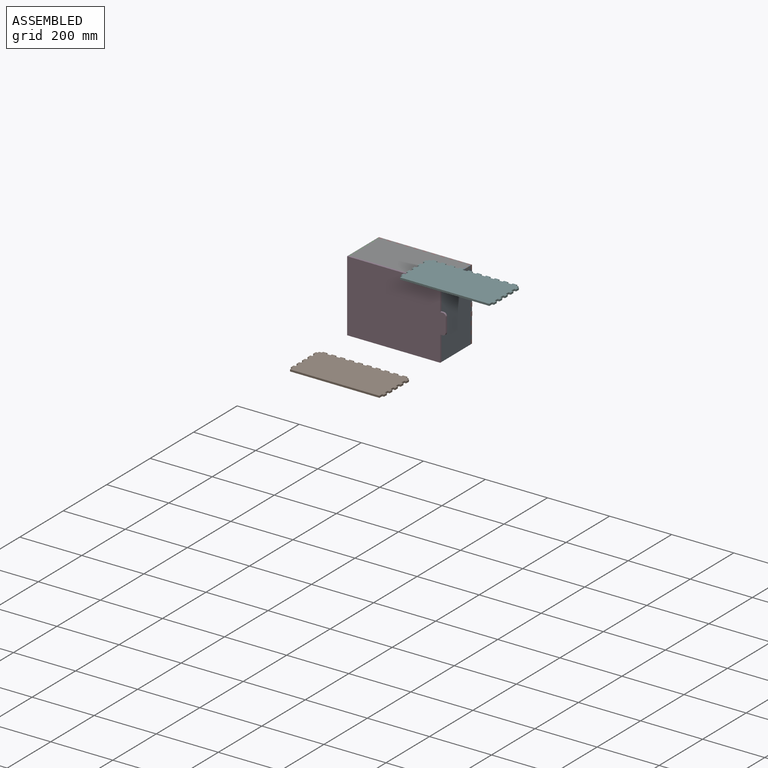
[diagram: assembled view]
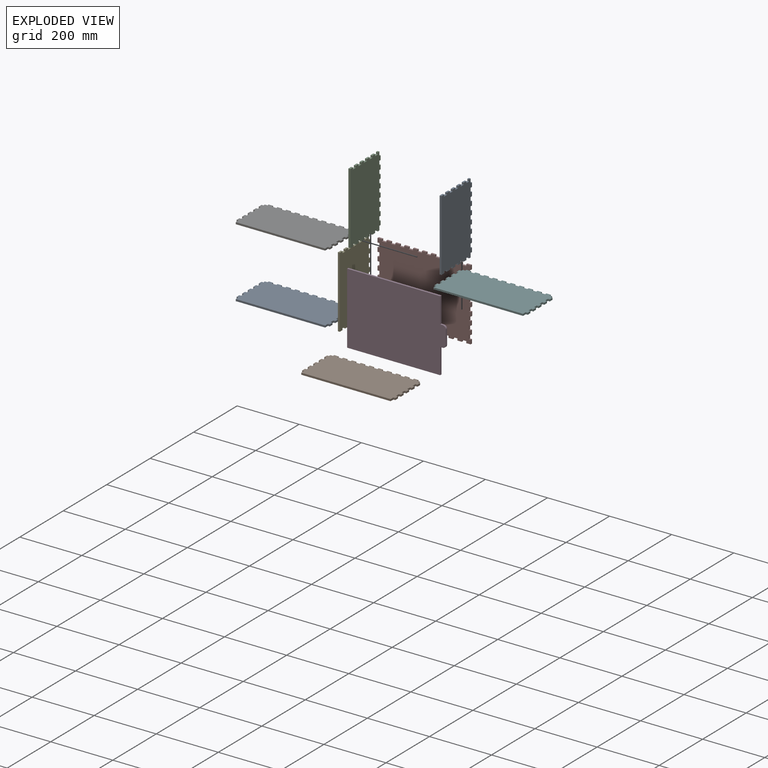
[diagram: exploded view]
GUIDED TOUR — MATED ASSEMBLY (Onshape document c0f93b202b602cbd2d23033f, AutoMate assembly c0f93b202b602cbd2d23033f_798e643a001d0c904de547af_803018418724ee15e28c0f07_default)

This assembly has 9 components, labeled P0..P8 below (a component is one placed occurrence of a part; the same part can appear more than once), held together by 5 mates. A mate is a constraint between two components; its type names the relative motion it leaves free:
  FASTENED — locks the two components together rigidly (no relative motion),
  REVOLUTE — leaves rotation about the listed axis free (a hinge).
Axis/direction vectors are unit vectors and 'through' points are millimeter coordinates, both in the assembly's world frame.

MATES
  1. FASTENED "Fastened 1": P7 <-> P8, direction (1.000, 0.000, 0.000) through (-205.83, -22.58, -101.08) mm
  2. FASTENED "front": P7 <-> P0, direction (0.000, 0.000, 1.000) through (66.74, -22.58, -86.78) mm
  3. FASTENED "ende": P7 <-> P2, direction (0.000, 0.000, 1.000) through (-221.26, -22.58, 102.63) mm
  4. FASTENED "Fastened 2": P7 <-> P6, direction (1.000, 0.000, 0.000) through (51.31, -22.58, 116.92) mm
  5. REVOLUTE "Revolute 1": P3 <-> P2, axis (0.000, 0.000, -1.000) through (-227.26, -162.58, 7.92) mm

ASSEMBLY ORDER
  1. P4 — the base component [order verified]
  2. P2 [order verified]
  3. P0 [order verified]
  4. P7 [order verified]
  5. P8 [order verified]
  6. P6 [order verified]
  7. P3 [order verified]
  8. P5 [order verified]
  9. P1 [order verified]
Order-tag legend:
  [order verified] — this step's position reverses a verified removal order: the component was checked to insert without passing through the ones already placed.

Of the 9 components, 9 carry the full construction recipe — the FeatureScript program that regenerates the part's solid from scratch; the rest are supplied as boundary geometry only.
Each toured component is shown spotlighted twice — in the assembled view, then in the exploded view, where a leader line traces a displaced component back to its assembled socket (saturated green if recipe-attached, orange if geometry-only; every other component desaturated gray) — followed by its recipe or geometry summary and the mates that hold it.
NOTE — this tour is split across 2 documents so each fits a 32k-token context. This is document 1: the component sections continue in the remaining 1 document, each repeating the header above.
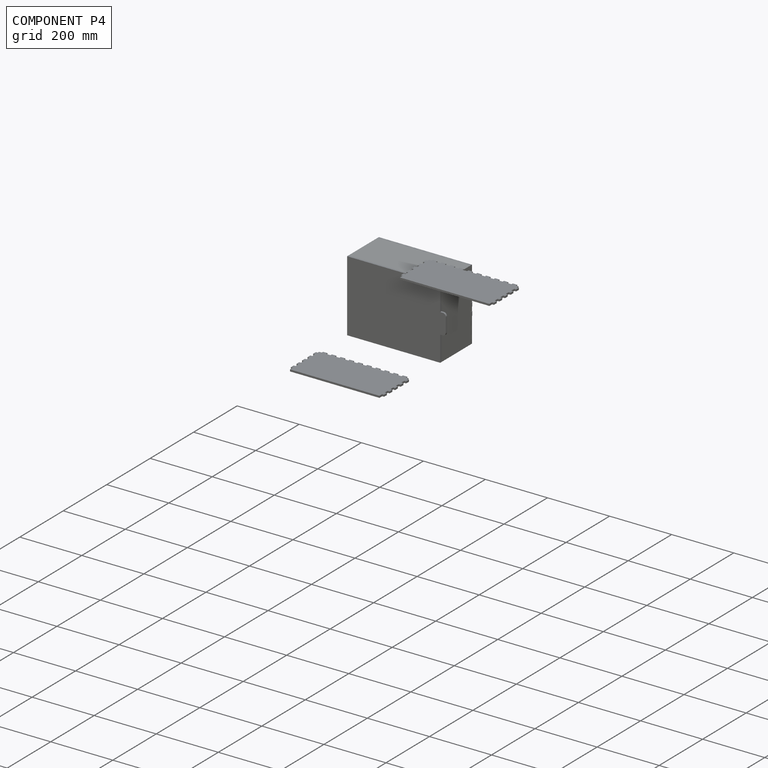
[diagram: component P4 — assembled]
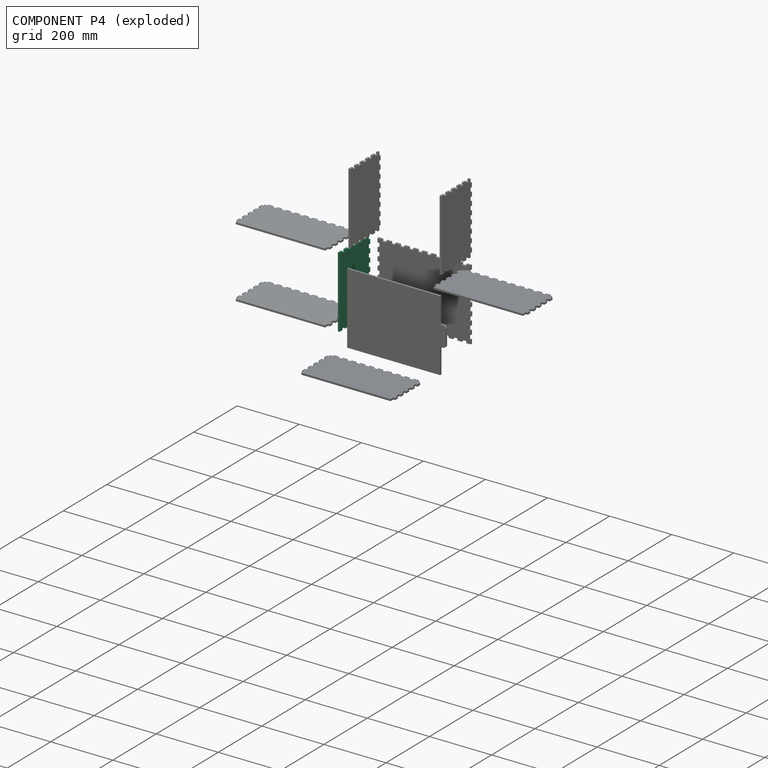
[diagram: component P4 — exploded]
COMPONENT P4 — same part as P0 (CADFS 00955355); its construction recipe is shown at P0.
Held by: no mates (free).
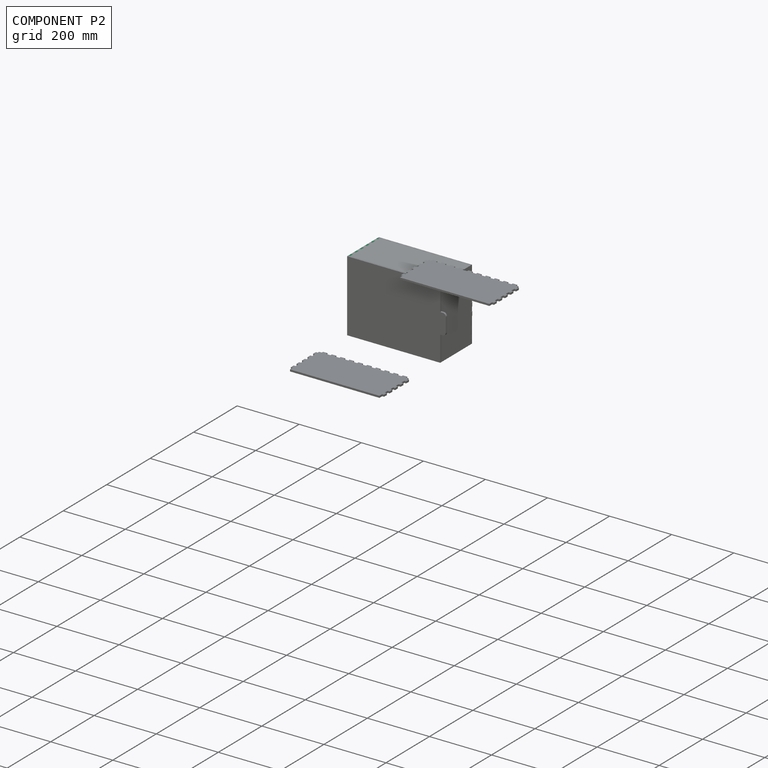
[diagram: component P2 — assembled]
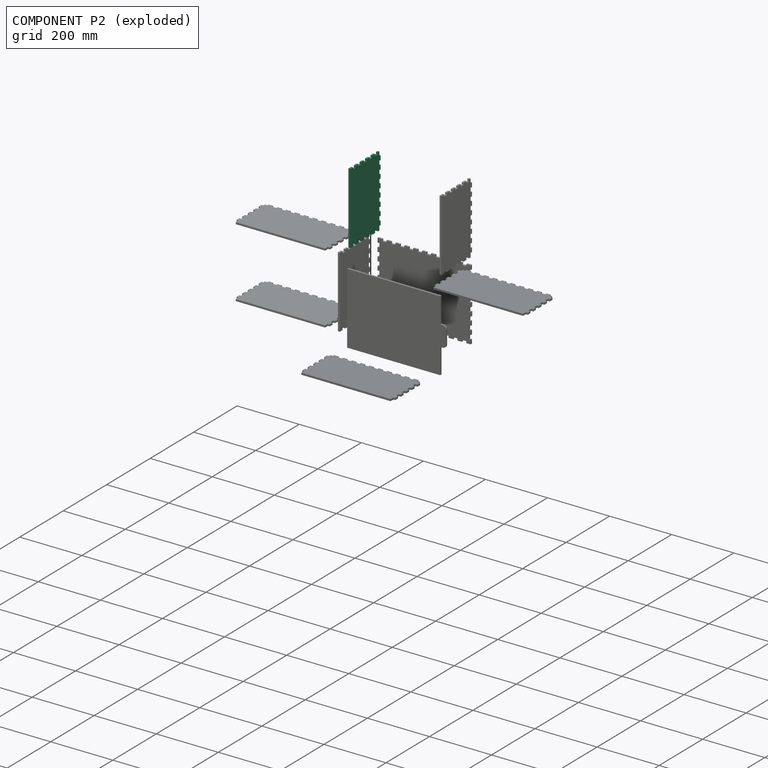
[diagram: component P2 — exploded]
COMPONENT P2 — recipe-attached (CADFS 00955355, mesh-verified: the recipe's output STEP matches this component's geometry to below the mesh-comparison resolution (tessellation chordal tolerance ~0.404 mm)).
Held by: FASTENED mate "ende" to P7; REVOLUTE mate "Revolute 1" to P3.
Construction recipe (FeatureScript — the CAD program that rebuilds this solid; sketch coordinates are in the units given by the * unit suffixes, e.g. mm):

FeatureScript 1511;
import(path : "onshape/std/geometry.fs", version : "1511.0");
import(path : "onshape/std/common.fs", version : "1511.0");
const mm = millimeter;
const VERTEX = EntityType.VERTEX;
const EDGE = EntityType.EDGE;
const FACE = EntityType.FACE;
const BODY = EntityType.BODY;
function v(x, y){return vector(x, y);}
function OD(order){return orderDisambiguation(order);}
function OSD(set){return originalSetDisambiguation(set);}
function TD(topology){return topologyDisambiguation(topology);}
function TDD(query){return trueDependencyDisambiguation(query);}
function sQuery(a, b, c) {return sketchEntityQuery(a, b, c);}

annotation { "Feature Type Name" : "Feature", "Feature Type Description" : "" }
export const myFeature = defineFeature(function(context is Context, id is Id, definition is map)
    precondition{}
    {
        {
            var Q0;
            Q0=qCreatedBy(makeId("Front.planeOp"),FACE);
            var sketch = newSketch(context, id + "F0", { "sketchPlane" : qUnion([Q0])});
            skLineSegment(sketch, "E0.top", {"start": v(109, 70) * mm, "end": v(-109, 70) * mm});
            skPoint(sketch, "E0.middle", {"position": v(0, 0) * mm});
            skLineSegment(sketch, "E1", {"start": v(-101.47, -70) * mm, "end": v(-101.47, -64) * mm});
            skLineSegment(sketch, "E2", {"start": v(-87.94, -64) * mm, "end": v(-87.94, -70) * mm});
            skLineSegment(sketch, "E3.1.0.0", {"start": v(-60.88, -64) * mm, "end": v(-60.88, -70) * mm});
            skLineSegment(sketch, "E3.1.0.4", {"start": v(-74.41, -70) * mm, "end": v(-74.41, -64) * mm});
            skLineSegment(sketch, "E3.2.0.0", {"start": v(-33.82, -64) * mm, "end": v(-33.82, -70) * mm});
            skLineSegment(sketch, "E3.2.0.4", {"start": v(-47.35, -70) * mm, "end": v(-47.35, -64) * mm});
            skLineSegment(sketch, "E3.3.0.0", {"start": v(-6.76, -64) * mm, "end": v(-6.76, -70) * mm});
            skLineSegment(sketch, "E3.3.0.4", {"start": v(-20.3, -70) * mm, "end": v(-20.3, -64) * mm});
            skLineSegment(sketch, "E3.4.0.0", {"start": v(20.3, -64) * mm, "end": v(20.3, -70) * mm});
            skLineSegment(sketch, "E3.4.0.4", {"start": v(6.76, -70) * mm, "end": v(6.76, -64) * mm});
            skLineSegment(sketch, "E3.5.0.0", {"start": v(47.35, -64) * mm, "end": v(47.35, -70) * mm});
            skLineSegment(sketch, "E3.5.0.4", {"start": v(33.82, -70) * mm, "end": v(33.82, -64) * mm});
            skLineSegment(sketch, "E3.6.0.0", {"start": v(74.41, -64) * mm, "end": v(74.41, -70) * mm});
            skLineSegment(sketch, "E3.6.0.4", {"start": v(60.88, -70) * mm, "end": v(60.88, -64) * mm});
            skLineSegment(sketch, "E3.7.0.0", {"start": v(101.47, -64) * mm, "end": v(101.47, -70) * mm});
            skLineSegment(sketch, "E3.7.0.4", {"start": v(87.94, -70) * mm, "end": v(87.94, -64) * mm});
            skLineSegment(sketch, "E3.direction1", {"start": v(-101.47, -70) * mm, "end": v(-87.94, -70) * mm, "construction": true});
            skLineSegment(sketch, "E4", {"start": v(-115, -64) * mm, "end": v(-115, -57.27) * mm});
            skLineSegment(sketch, "E5", {"start": v(-115, -57.27) * mm, "end": v(-109, -57.27) * mm});
            skLineSegment(sketch, "E6", {"start": v(-109, -57.27) * mm, "end": v(-109, -44.55) * mm});
            skLineSegment(sketch, "E7", {"start": v(-109, -44.55) * mm, "end": v(-115, -44.55) * mm});
            skLineSegment(sketch, "E8", {"start": v(-115, -44.55) * mm, "end": v(-115, -31.82) * mm});
            skLineSegment(sketch, "E9.1.0.0", {"start": v(-109, -31.82) * mm, "end": v(-109, -19.1) * mm});
            skLineSegment(sketch, "E9.1.0.1", {"start": v(-109, -19.1) * mm, "end": v(-115, -19.1) * mm});
            skLineSegment(sketch, "E9.1.0.2", {"start": v(-115, -31.82) * mm, "end": v(-109, -31.82) * mm});
            skLineSegment(sketch, "E9.1.0.3", {"start": v(-115, -19.1) * mm, "end": v(-115, -6.36) * mm});
            skLineSegment(sketch, "E9.2.0.0", {"start": v(-109, -6.36) * mm, "end": v(-109, 6.36) * mm});
            skLineSegment(sketch, "E9.2.0.1", {"start": v(-109, 6.36) * mm, "end": v(-115, 6.36) * mm});
            skLineSegment(sketch, "E9.2.0.2", {"start": v(-115, -6.36) * mm, "end": v(-109, -6.36) * mm});
            skLineSegment(sketch, "E9.2.0.3", {"start": v(-115, 6.36) * mm, "end": v(-115, 19.1) * mm});
            skLineSegment(sketch, "E9.2.0.4", {"start": v(-115, -19.1) * mm, "end": v(-115, -6.36) * mm});
            skLineSegment(sketch, "E9.direction1", {"start": v(-115, -64) * mm, "end": v(-115, -44.55) * mm, "construction": true});
            skLineSegment(sketch, "E10.0.3.0", {"start": v(-109, 19.1) * mm, "end": v(-109, 31.82) * mm});
            skLineSegment(sketch, "E10.3.3.0", {"start": v(-109, 31.82) * mm, "end": v(-115, 31.82) * mm});
            skLineSegment(sketch, "E10.6.3.0", {"start": v(-115, 19.1) * mm, "end": v(-109, 19.1) * mm});
            skLineSegment(sketch, "E10.9.3.0", {"start": v(-115, 31.82) * mm, "end": v(-115, 44.55) * mm});
            skLineSegment(sketch, "E10.0.4.0", {"start": v(-109, 44.55) * mm, "end": v(-109, 57.27) * mm});
            skLineSegment(sketch, "E10.6.4.0", {"start": v(-115, 44.55) * mm, "end": v(-109, 44.55) * mm});
            skLineSegment(sketch, "E10.12.4.0", {"start": v(-115, 31.82) * mm, "end": v(-115, 44.55) * mm});
            skLineSegment(sketch, "E11.MirrorCS", {"start": v(115, 44.55) * mm, "end": v(109, 44.55) * mm});
            skLineSegment(sketch, "E12.MirrorCS", {"start": v(109, -44.55) * mm, "end": v(115, -44.55) * mm});
            skLineSegment(sketch, "E13.MirrorCS", {"start": v(115, -31.82) * mm, "end": v(109, -31.82) * mm});
            skLineSegment(sketch, "E14.MirrorCS", {"start": v(109, -19.1) * mm, "end": v(115, -19.1) * mm});
            skLineSegment(sketch, "E15.MirrorCS", {"start": v(109, 6.36) * mm, "end": v(115, 6.36) * mm});
            skLineSegment(sketch, "E16.MirrorCS", {"start": v(115, -6.36) * mm, "end": v(109, -6.36) * mm});
            skLineSegment(sketch, "E17.MirrorCS", {"start": v(115, -44.55) * mm, "end": v(115, -31.82) * mm});
            skLineSegment(sketch, "E18.MirrorCS", {"start": v(115, -57.27) * mm, "end": v(109, -57.27) * mm});
            skLineSegment(sketch, "E19.MirrorCS", {"start": v(109, 31.82) * mm, "end": v(115, 31.82) * mm});
            skLineSegment(sketch, "E20.MirrorCS", {"start": v(115, 19.1) * mm, "end": v(109, 19.1) * mm});
            skLineSegment(sketch, "E21.MirrorCS", {"start": v(115, 6.36) * mm, "end": v(115, 19.1) * mm});
            skLineSegment(sketch, "E22.MirrorCS", {"start": v(115, 31.82) * mm, "end": v(115, 44.55) * mm});
            skLineSegment(sketch, "E23.MirrorCS", {"start": v(115, -64) * mm, "end": v(115, -57.27) * mm});
            skLineSegment(sketch, "E24.MirrorCS", {"start": v(115, -19.1) * mm, "end": v(115, -6.36) * mm});
            skLineSegment(sketch, "E25.MirrorCS", {"start": v(115, -64) * mm, "end": v(115, -44.55) * mm, "construction": true});
            skLineSegment(sketch, "E26.MirrorCS", {"start": v(109, 19.1) * mm, "end": v(109, 31.82) * mm});
            skLineSegment(sketch, "E27.MirrorCS", {"start": v(109, -6.36) * mm, "end": v(109, 6.36) * mm});
            skLineSegment(sketch, "E28.MirrorCS", {"start": v(109, 44.55) * mm, "end": v(109, 57.27) * mm});
            skLineSegment(sketch, "E29.MirrorCS", {"start": v(109, -57.27) * mm, "end": v(109, -44.55) * mm});
            skLineSegment(sketch, "E30.MirrorCS", {"start": v(109, -31.82) * mm, "end": v(109, -19.1) * mm});
            skLineSegment(sketch, "E31", {"start": v(-115, -64) * mm, "end": v(-101.47, -64) * mm});
            skPoint(sketch, "E31.startSnap0", {"position": v(-115, -63.64) * mm});
            skPoint(sketch, "E31.endSnap0", {"position": v(94.7, -64) * mm});
            skLineSegment(sketch, "E32", {"start": v(101.47, -70) * mm, "end": v(87.94, -70) * mm});
            skPoint(sketch, "E33.orphan", {"position": v(-115, -70) * mm});
            skLineSegment(sketch, "E34.trimOffspring", {"start": v(-87.94, -64) * mm, "end": v(-74.41, -64) * mm});
            skLineSegment(sketch, "E35.trimOffspring", {"start": v(-87.94, -70) * mm, "end": v(-101.47, -70) * mm});
            skLineSegment(sketch, "E36.trimOffspring", {"start": v(-60.88, -64) * mm, "end": v(-47.35, -64) * mm});
            skLineSegment(sketch, "E37.trimOffspring", {"start": v(-60.88, -70) * mm, "end": v(-74.41, -70) * mm});
            skLineSegment(sketch, "E38.trimOffspring", {"start": v(-33.82, -64) * mm, "end": v(-20.3, -64) * mm});
            skLineSegment(sketch, "E39.trimOffspring", {"start": v(-33.82, -70) * mm, "end": v(-47.35, -70) * mm});
            skLineSegment(sketch, "E40.trimOffspring", {"start": v(-6.76, -64) * mm, "end": v(6.76, -64) * mm});
            skLineSegment(sketch, "E41.trimOffspring", {"start": v(-6.76, -70) * mm, "end": v(-20.3, -70) * mm});
            skLineSegment(sketch, "E42.trimOffspring", {"start": v(20.3, -64) * mm, "end": v(33.82, -64) * mm});
            skLineSegment(sketch, "E43.trimOffspring", {"start": v(20.3, -70) * mm, "end": v(6.76, -70) * mm});
            skLineSegment(sketch, "E44.trimOffspring", {"start": v(47.35, -64) * mm, "end": v(60.88, -64) * mm});
            skLineSegment(sketch, "E45.trimOffspring", {"start": v(47.35, -70) * mm, "end": v(33.82, -70) * mm});
            skLineSegment(sketch, "E46.trimOffspring", {"start": v(74.41, -64) * mm, "end": v(87.94, -64) * mm});
            skLineSegment(sketch, "E47.trimOffspring", {"start": v(74.41, -70) * mm, "end": v(60.88, -70) * mm});
            skLineSegment(sketch, "E48.trimOffspring", {"start": v(101.47, -64) * mm, "end": v(115, -64) * mm});
            skPoint(sketch, "E49.orphan", {"position": v(115, 70) * mm});
            skLineSegment(sketch, "E50", {"start": v(-109, 57.27) * mm, "end": v(-115, 57.27) * mm});
            skLineSegment(sketch, "E51", {"start": v(-115, 57.27) * mm, "end": v(-115, 70) * mm});
            skLineSegment(sketch, "E52", {"start": v(-115, 70) * mm, "end": v(-109, 70) * mm});
            skLineSegment(sketch, "E53", {"start": v(109, 57.27) * mm, "end": v(115, 57.27) * mm});
            skLineSegment(sketch, "E54", {"start": v(115, 57.27) * mm, "end": v(115, 70) * mm});
            skLineSegment(sketch, "E55", {"start": v(109, 70) * mm, "end": v(115, 70) * mm});
            skSolve(sketch);
        }
        {
            var Q0;
            Q0=makeQuery(id+"F0.imprint","IMPRINT",FACE,{"disambiguationData":[TD([[makeQuery(id+"F0.imprint","IMPRINT",EDGE,{"derivedFrom":sQuery(id+"F0.wireOp",EDGE,"E0.top")}),1.0]])]});
            extrude(context, id + "F1", {"entities" : qUnion([Q0]), "depth" : 6 * mm, "offsetDistance" : 25 * mm});
        }
    });
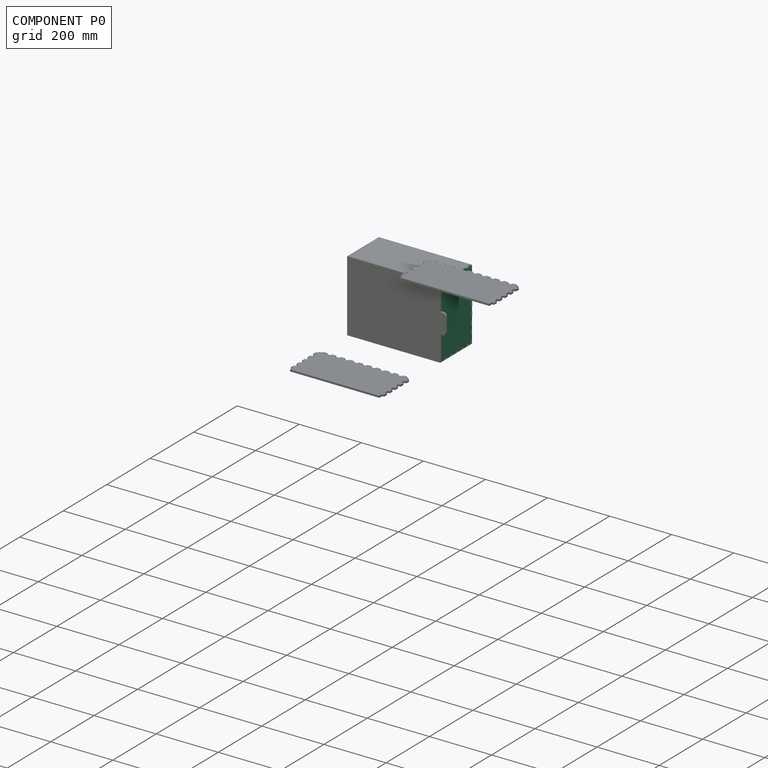
[diagram: component P0 — assembled]
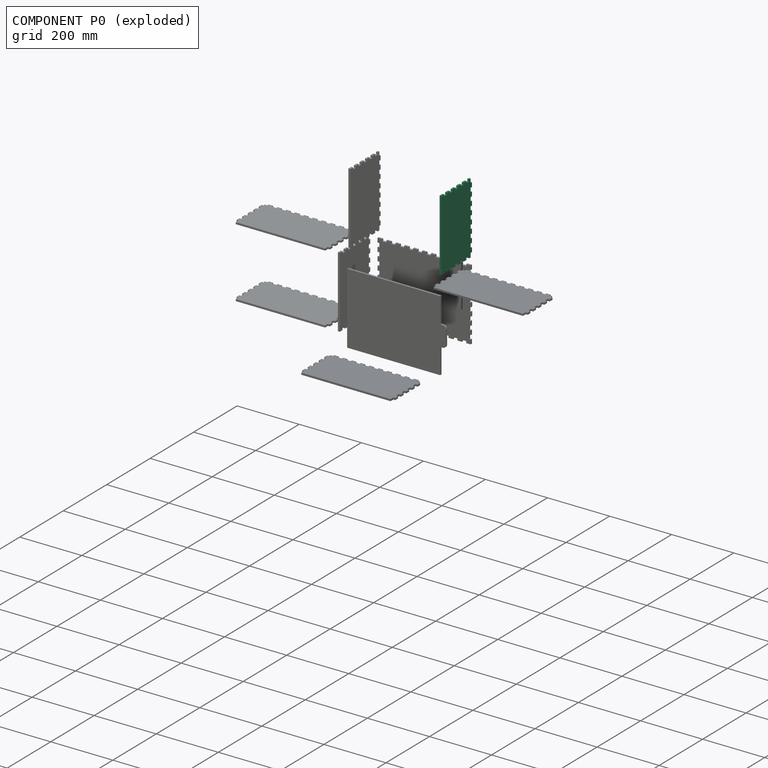
[diagram: component P0 — exploded]
COMPONENT P0 — recipe-attached (CADFS 00955355, mesh-verified: the recipe's output STEP matches this component's geometry to below the mesh-comparison resolution (tessellation chordal tolerance ~0.404 mm)).
Held by: FASTENED mate "front" to P7.
Construction recipe (FeatureScript — the CAD program that rebuilds this solid; sketch coordinates are in the units given by the * unit suffixes, e.g. mm):

FeatureScript 1511;
import(path : "onshape/std/geometry.fs", version : "1511.0");
import(path : "onshape/std/common.fs", version : "1511.0");
const mm = millimeter;
const VERTEX = EntityType.VERTEX;
const EDGE = EntityType.EDGE;
const FACE = EntityType.FACE;
const BODY = EntityType.BODY;
function v(x, y){return vector(x, y);}
function OD(order){return orderDisambiguation(order);}
function OSD(set){return originalSetDisambiguation(set);}
function TD(topology){return topologyDisambiguation(topology);}
function TDD(query){return trueDependencyDisambiguation(query);}
function sQuery(a, b, c) {return sketchEntityQuery(a, b, c);}

annotation { "Feature Type Name" : "Feature", "Feature Type Description" : "" }
export const myFeature = defineFeature(function(context is Context, id is Id, definition is map)
    precondition{}
    {
        {
            var Q0;
            Q0=qCreatedBy(makeId("Front.planeOp"),FACE);
            var sketch = newSketch(context, id + "F0", { "sketchPlane" : qUnion([Q0])});
            skLineSegment(sketch, "E0.top", {"start": v(109, 70) * mm, "end": v(-109, 70) * mm});
            skPoint(sketch, "E0.middle", {"position": v(0, 0) * mm});
            skLineSegment(sketch, "E1", {"start": v(-101.47, -70) * mm, "end": v(-101.47, -64) * mm});
            skLineSegment(sketch, "E2", {"start": v(-87.94, -64) * mm, "end": v(-87.94, -70) * mm});
            skLineSegment(sketch, "E3.1.0.0", {"start": v(-60.88, -64) * mm, "end": v(-60.88, -70) * mm});
            skLineSegment(sketch, "E3.1.0.4", {"start": v(-74.41, -70) * mm, "end": v(-74.41, -64) * mm});
            skLineSegment(sketch, "E3.2.0.0", {"start": v(-33.82, -64) * mm, "end": v(-33.82, -70) * mm});
            skLineSegment(sketch, "E3.2.0.4", {"start": v(-47.35, -70) * mm, "end": v(-47.35, -64) * mm});
            skLineSegment(sketch, "E3.3.0.0", {"start": v(-6.76, -64) * mm, "end": v(-6.76, -70) * mm});
            skLineSegment(sketch, "E3.3.0.4", {"start": v(-20.3, -70) * mm, "end": v(-20.3, -64) * mm});
            skLineSegment(sketch, "E3.4.0.0", {"start": v(20.3, -64) * mm, "end": v(20.3, -70) * mm});
            skLineSegment(sketch, "E3.4.0.4", {"start": v(6.76, -70) * mm, "end": v(6.76, -64) * mm});
            skLineSegment(sketch, "E3.5.0.0", {"start": v(47.35, -64) * mm, "end": v(47.35, -70) * mm});
            skLineSegment(sketch, "E3.5.0.4", {"start": v(33.82, -70) * mm, "end": v(33.82, -64) * mm});
            skLineSegment(sketch, "E3.6.0.0", {"start": v(74.41, -64) * mm, "end": v(74.41, -70) * mm});
            skLineSegment(sketch, "E3.6.0.4", {"start": v(60.88, -70) * mm, "end": v(60.88, -64) * mm});
            skLineSegment(sketch, "E3.7.0.0", {"start": v(101.47, -64) * mm, "end": v(101.47, -70) * mm});
            skLineSegment(sketch, "E3.7.0.4", {"start": v(87.94, -70) * mm, "end": v(87.94, -64) * mm});
            skLineSegment(sketch, "E3.direction1", {"start": v(-101.47, -70) * mm, "end": v(-87.94, -70) * mm, "construction": true});
            skLineSegment(sketch, "E4", {"start": v(-115, -64) * mm, "end": v(-115, -57.27) * mm});
            skLineSegment(sketch, "E5", {"start": v(-115, -57.27) * mm, "end": v(-109, -57.27) * mm});
            skLineSegment(sketch, "E6", {"start": v(-109, -57.27) * mm, "end": v(-109, -44.55) * mm});
            skLineSegment(sketch, "E7", {"start": v(-109, -44.55) * mm, "end": v(-115, -44.55) * mm});
            skLineSegment(sketch, "E8", {"start": v(-115, -44.55) * mm, "end": v(-115, -31.82) * mm});
            skLineSegment(sketch, "E9.1.0.0", {"start": v(-109, -31.82) * mm, "end": v(-109, -19.1) * mm});
            skLineSegment(sketch, "E9.1.0.1", {"start": v(-109, -19.1) * mm, "end": v(-115, -19.1) * mm});
            skLineSegment(sketch, "E9.1.0.2", {"start": v(-115, -31.82) * mm, "end": v(-109, -31.82) * mm});
            skLineSegment(sketch, "E9.1.0.3", {"start": v(-115, -19.1) * mm, "end": v(-115, -6.36) * mm});
            skLineSegment(sketch, "E9.2.0.0", {"start": v(-109, -6.36) * mm, "end": v(-109, 6.36) * mm});
            skLineSegment(sketch, "E9.2.0.1", {"start": v(-109, 6.36) * mm, "end": v(-115, 6.36) * mm});
            skLineSegment(sketch, "E9.2.0.2", {"start": v(-115, -6.36) * mm, "end": v(-109, -6.36) * mm});
            skLineSegment(sketch, "E9.2.0.3", {"start": v(-115, 6.36) * mm, "end": v(-115, 19.1) * mm});
            skLineSegment(sketch, "E9.2.0.4", {"start": v(-115, -19.1) * mm, "end": v(-115, -6.36) * mm});
            skLineSegment(sketch, "E9.direction1", {"start": v(-115, -64) * mm, "end": v(-115, -44.55) * mm, "construction": true});
            skLineSegment(sketch, "E10.0.3.0", {"start": v(-109, 19.1) * mm, "end": v(-109, 31.82) * mm});
            skLineSegment(sketch, "E10.3.3.0", {"start": v(-109, 31.82) * mm, "end": v(-115, 31.82) * mm});
            skLineSegment(sketch, "E10.6.3.0", {"start": v(-115, 19.1) * mm, "end": v(-109, 19.1) * mm});
            skLineSegment(sketch, "E10.9.3.0", {"start": v(-115, 31.82) * mm, "end": v(-115, 44.55) * mm});
            skLineSegment(sketch, "E10.0.4.0", {"start": v(-109, 44.55) * mm, "end": v(-109, 57.27) * mm});
            skLineSegment(sketch, "E10.6.4.0", {"start": v(-115, 44.55) * mm, "end": v(-109, 44.55) * mm});
            skLineSegment(sketch, "E10.12.4.0", {"start": v(-115, 31.82) * mm, "end": v(-115, 44.55) * mm});
            skLineSegment(sketch, "E11.MirrorCS", {"start": v(115, 44.55) * mm, "end": v(109, 44.55) * mm});
            skLineSegment(sketch, "E12.MirrorCS", {"start": v(109, -44.55) * mm, "end": v(115, -44.55) * mm});
            skLineSegment(sketch, "E13.MirrorCS", {"start": v(115, -31.82) * mm, "end": v(109, -31.82) * mm});
            skLineSegment(sketch, "E14.MirrorCS", {"start": v(109, -19.1) * mm, "end": v(115, -19.1) * mm});
            skLineSegment(sketch, "E15.MirrorCS", {"start": v(109, 6.36) * mm, "end": v(115, 6.36) * mm});
            skLineSegment(sketch, "E16.MirrorCS", {"start": v(115, -6.36) * mm, "end": v(109, -6.36) * mm});
            skLineSegment(sketch, "E17.MirrorCS", {"start": v(115, -44.55) * mm, "end": v(115, -31.82) * mm});
            skLineSegment(sketch, "E18.MirrorCS", {"start": v(115, -57.27) * mm, "end": v(109, -57.27) * mm});
            skLineSegment(sketch, "E19.MirrorCS", {"start": v(109, 31.82) * mm, "end": v(115, 31.82) * mm});
            skLineSegment(sketch, "E20.MirrorCS", {"start": v(115, 19.1) * mm, "end": v(109, 19.1) * mm});
            skLineSegment(sketch, "E21.MirrorCS", {"start": v(115, 6.36) * mm, "end": v(115, 19.1) * mm});
            skLineSegment(sketch, "E22.MirrorCS", {"start": v(115, 31.82) * mm, "end": v(115, 44.55) * mm});
            skLineSegment(sketch, "E23.MirrorCS", {"start": v(115, -64) * mm, "end": v(115, -57.27) * mm});
            skLineSegment(sketch, "E24.MirrorCS", {"start": v(115, -19.1) * mm, "end": v(115, -6.36) * mm});
            skLineSegment(sketch, "E25.MirrorCS", {"start": v(115, -64) * mm, "end": v(115, -44.55) * mm, "construction": true});
            skLineSegment(sketch, "E26.MirrorCS", {"start": v(109, 19.1) * mm, "end": v(109, 31.82) * mm});
            skLineSegment(sketch, "E27.MirrorCS", {"start": v(109, -6.36) * mm, "end": v(109, 6.36) * mm});
            skLineSegment(sketch, "E28.MirrorCS", {"start": v(109, 44.55) * mm, "end": v(109, 57.27) * mm});
            skLineSegment(sketch, "E29.MirrorCS", {"start": v(109, -57.27) * mm, "end": v(109, -44.55) * mm});
            skLineSegment(sketch, "E30.MirrorCS", {"start": v(109, -31.82) * mm, "end": v(109, -19.1) * mm});
            skLineSegment(sketch, "E31", {"start": v(-115, -64) * mm, "end": v(-101.47, -64) * mm});
            skPoint(sketch, "E31.startSnap0", {"position": v(-115, -63.64) * mm});
            skPoint(sketch, "E31.endSnap0", {"position": v(94.7, -64) * mm});
            skLineSegment(sketch, "E32", {"start": v(101.47, -70) * mm, "end": v(87.94, -70) * mm});
            skPoint(sketch, "E33.orphan", {"position": v(-115, -70) * mm});
            skLineSegment(sketch, "E34.trimOffspring", {"start": v(-87.94, -64) * mm, "end": v(-74.41, -64) * mm});
            skLineSegment(sketch, "E35.trimOffspring", {"start": v(-87.94, -70) * mm, "end": v(-101.47, -70) * mm});
            skLineSegment(sketch, "E36.trimOffspring", {"start": v(-60.88, -64) * mm, "end": v(-47.35, -64) * mm});
            skLineSegment(sketch, "E37.trimOffspring", {"start": v(-60.88, -70) * mm, "end": v(-74.41, -70) * mm});
            skLineSegment(sketch, "E38.trimOffspring", {"start": v(-33.82, -64) * mm, "end": v(-20.3, -64) * mm});
            skLineSegment(sketch, "E39.trimOffspring", {"start": v(-33.82, -70) * mm, "end": v(-47.35, -70) * mm});
            skLineSegment(sketch, "E40.trimOffspring", {"start": v(-6.76, -64) * mm, "end": v(6.76, -64) * mm});
            skLineSegment(sketch, "E41.trimOffspring", {"start": v(-6.76, -70) * mm, "end": v(-20.3, -70) * mm});
            skLineSegment(sketch, "E42.trimOffspring", {"start": v(20.3, -64) * mm, "end": v(33.82, -64) * mm});
            skLineSegment(sketch, "E43.trimOffspring", {"start": v(20.3, -70) * mm, "end": v(6.76, -70) * mm});
            skLineSegment(sketch, "E44.trimOffspring", {"start": v(47.35, -64) * mm, "end": v(60.88, -64) * mm});
            skLineSegment(sketch, "E45.trimOffspring", {"start": v(47.35, -70) * mm, "end": v(33.82, -70) * mm});
            skLineSegment(sketch, "E46.trimOffspring", {"start": v(74.41, -64) * mm, "end": v(87.94, -64) * mm});
            skLineSegment(sketch, "E47.trimOffspring", {"start": v(74.41, -70) * mm, "end": v(60.88, -70) * mm});
            skLineSegment(sketch, "E48.trimOffspring", {"start": v(101.47, -64) * mm, "end": v(115, -64) * mm});
            skPoint(sketch, "E49.orphan", {"position": v(115, 70) * mm});
            skLineSegment(sketch, "E50", {"start": v(-109, 57.27) * mm, "end": v(-115, 57.27) * mm});
            skLineSegment(sketch, "E51", {"start": v(-115, 57.27) * mm, "end": v(-115, 70) * mm});
            skLineSegment(sketch, "E52", {"start": v(-115, 70) * mm, "end": v(-109, 70) * mm});
            skLineSegment(sketch, "E53", {"start": v(109, 57.27) * mm, "end": v(115, 57.27) * mm});
            skLineSegment(sketch, "E54", {"start": v(115, 57.27) * mm, "end": v(115, 70) * mm});
            skLineSegment(sketch, "E55", {"start": v(109, 70) * mm, "end": v(115, 70) * mm});
            skSolve(sketch);
        }
        {
            var Q0;
            Q0=makeQuery(id+"F0.imprint","IMPRINT",FACE,{"disambiguationData":[TD([[makeQuery(id+"F0.imprint","IMPRINT",EDGE,{"derivedFrom":sQuery(id+"F0.wireOp",EDGE,"E0.top")}),1.0]])]});
            extrude(context, id + "F1", {"entities" : qUnion([Q0]), "depth" : 6 * mm, "offsetDistance" : 25 * mm});
        }
    });
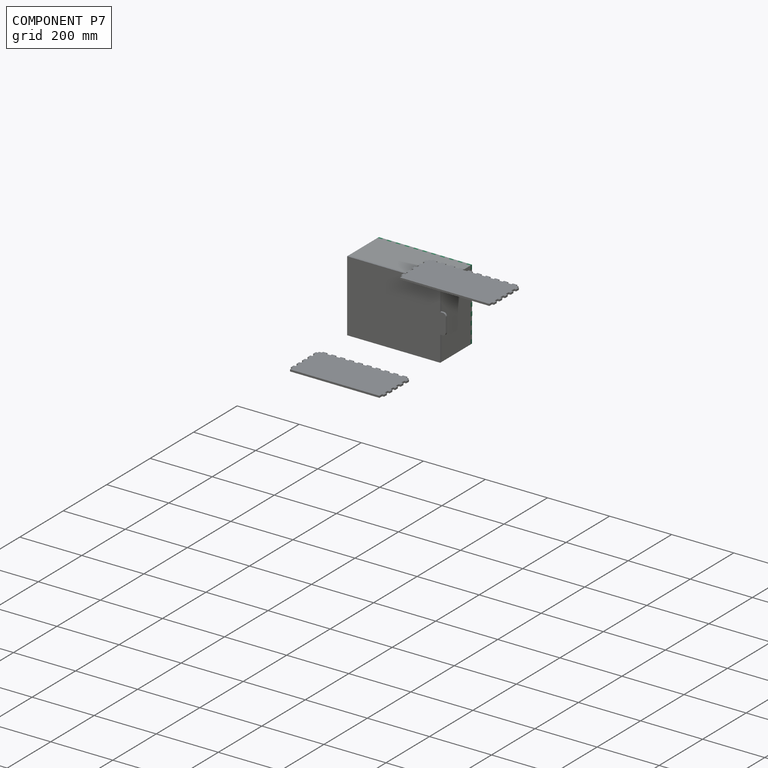
[diagram: component P7 — assembled]
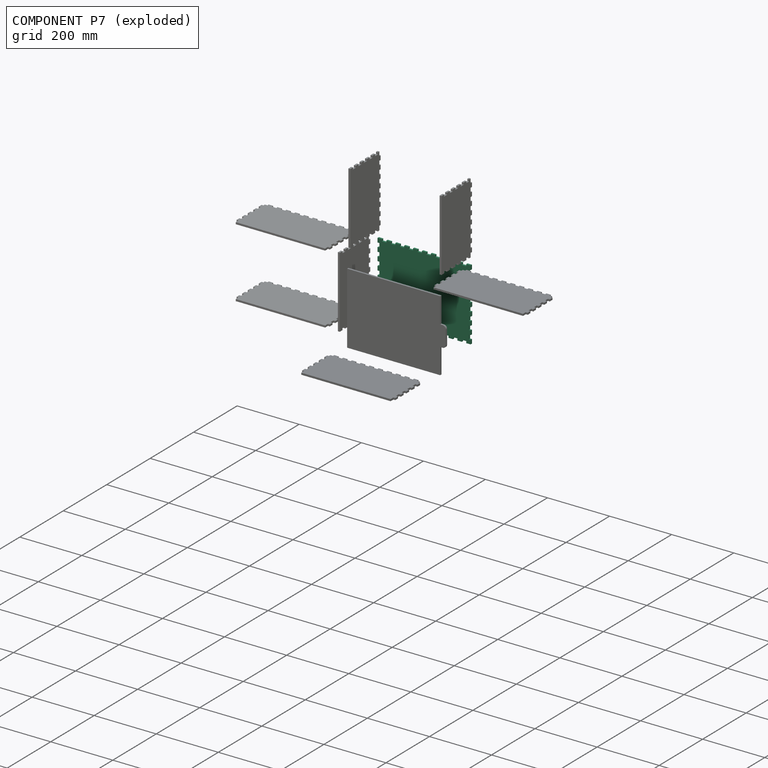
[diagram: component P7 — exploded]
COMPONENT P7 — recipe-attached (CADFS 00955353, mesh-verified: the recipe's output STEP matches this component's geometry to below the mesh-comparison resolution (tessellation chordal tolerance ~0.568 mm)).
Held by: FASTENED mate "Fastened 1" to P8; FASTENED mate "front" to P0; FASTENED mate "ende" to P2; FASTENED mate "Fastened 2" to P6.
Construction recipe (FeatureScript — the CAD program that rebuilds this solid; sketch coordinates are in the units given by the * unit suffixes, e.g. mm):

FeatureScript 1511;
import(path : "onshape/std/geometry.fs", version : "1511.0");
import(path : "onshape/std/common.fs", version : "1511.0");
const mm = millimeter;
const VERTEX = EntityType.VERTEX;
const EDGE = EntityType.EDGE;
const FACE = EntityType.FACE;
const BODY = EntityType.BODY;
function v(x, y){return vector(x, y);}
function OD(order){return orderDisambiguation(order);}
function OSD(set){return originalSetDisambiguation(set);}
function TD(topology){return topologyDisambiguation(topology);}
function TDD(query){return trueDependencyDisambiguation(query);}
function sQuery(a, b, c) {return sketchEntityQuery(a, b, c);}

annotation { "Feature Type Name" : "Feature", "Feature Type Description" : "" }
export const myFeature = defineFeature(function(context is Context, id is Id, definition is map)
    precondition{}
    {
        {
            var Q0;
            Q0=qCreatedBy(makeId("Front.planeOp"),FACE);
            var sketch = newSketch(context, id + "F0", { "sketchPlane" : qUnion([Q0])});
            skLineSegment(sketch, "E0.left", {"start": v(149.57, 115) * mm, "end": v(149.57, 115.47) * mm});
            skLineSegment(sketch, "E1", {"start": v(-150.43, 115) * mm, "end": v(-136.14, 115) * mm});
            skLineSegment(sketch, "E2", {"start": v(-136.14, 115) * mm, "end": v(-136.14, 109) * mm});
            skLineSegment(sketch, "E3", {"start": v(-136.14, 109) * mm, "end": v(-121.86, 109) * mm});
            skLineSegment(sketch, "E4", {"start": v(-121.86, 109) * mm, "end": v(-121.86, 115) * mm});
            skLineSegment(sketch, "E5", {"start": v(-121.86, 115) * mm, "end": v(-107.57, 115) * mm});
            skLineSegment(sketch, "E6.1.0.1", {"start": v(-93.29, 115) * mm, "end": v(-79, 115) * mm});
            skLineSegment(sketch, "E6.1.0.2", {"start": v(-107.57, 109) * mm, "end": v(-93.29, 109) * mm});
            skLineSegment(sketch, "E6.1.0.3", {"start": v(-107.57, 115) * mm, "end": v(-107.57, 109) * mm});
            skLineSegment(sketch, "E6.1.0.4", {"start": v(-93.29, 109) * mm, "end": v(-93.29, 115) * mm});
            skLineSegment(sketch, "E6.2.0.0", {"start": v(-93.29, 115) * mm, "end": v(-79, 115) * mm});
            skLineSegment(sketch, "E6.2.0.1", {"start": v(-64.72, 115) * mm, "end": v(-50.43, 115) * mm});
            skLineSegment(sketch, "E6.2.0.2", {"start": v(-79, 109) * mm, "end": v(-64.72, 109) * mm});
            skLineSegment(sketch, "E6.2.0.3", {"start": v(-79, 115) * mm, "end": v(-79, 109) * mm});
            skLineSegment(sketch, "E6.2.0.4", {"start": v(-64.72, 109) * mm, "end": v(-64.72, 115) * mm});
            skLineSegment(sketch, "E6.3.0.0", {"start": v(-64.72, 115) * mm, "end": v(-50.43, 115) * mm});
            skLineSegment(sketch, "E6.3.0.1", {"start": v(-36.14, 115) * mm, "end": v(-21.86, 115) * mm});
            skLineSegment(sketch, "E6.3.0.2", {"start": v(-50.43, 109) * mm, "end": v(-36.14, 109) * mm});
            skLineSegment(sketch, "E6.3.0.3", {"start": v(-50.43, 115) * mm, "end": v(-50.43, 109) * mm});
            skLineSegment(sketch, "E6.3.0.4", {"start": v(-36.14, 109) * mm, "end": v(-36.14, 115) * mm});
            skLineSegment(sketch, "E6.4.0.0", {"start": v(-36.14, 115) * mm, "end": v(-21.86, 115) * mm});
            skLineSegment(sketch, "E6.4.0.1", {"start": v(-7.57, 115) * mm, "end": v(6.71, 115) * mm});
            skLineSegment(sketch, "E6.4.0.2", {"start": v(-21.86, 109) * mm, "end": v(-7.57, 109) * mm});
            skLineSegment(sketch, "E6.4.0.3", {"start": v(-21.86, 115) * mm, "end": v(-21.86, 109) * mm});
            skLineSegment(sketch, "E6.4.0.4", {"start": v(-7.57, 109) * mm, "end": v(-7.57, 115) * mm});
            skLineSegment(sketch, "E6.5.0.0", {"start": v(-7.57, 115) * mm, "end": v(6.71, 115) * mm});
            skLineSegment(sketch, "E6.5.0.1", {"start": v(21, 115) * mm, "end": v(35.28, 115) * mm});
            skLineSegment(sketch, "E6.5.0.2", {"start": v(6.71, 109) * mm, "end": v(21, 109) * mm});
            skLineSegment(sketch, "E6.5.0.3", {"start": v(6.71, 115) * mm, "end": v(6.71, 109) * mm});
            skLineSegment(sketch, "E6.5.0.4", {"start": v(21, 109) * mm, "end": v(21, 115) * mm});
            skLineSegment(sketch, "E6.6.0.0", {"start": v(21, 115) * mm, "end": v(35.28, 115) * mm});
            skLineSegment(sketch, "E6.6.0.1", {"start": v(49.57, 115) * mm, "end": v(63.86, 115) * mm});
            skLineSegment(sketch, "E6.6.0.2", {"start": v(35.28, 109) * mm, "end": v(49.57, 109) * mm});
            skLineSegment(sketch, "E6.6.0.3", {"start": v(35.28, 115) * mm, "end": v(35.28, 109) * mm});
            skLineSegment(sketch, "E6.6.0.4", {"start": v(49.57, 109) * mm, "end": v(49.57, 115) * mm});
            skLineSegment(sketch, "E6.7.0.0", {"start": v(49.57, 115) * mm, "end": v(63.86, 115) * mm});
            skLineSegment(sketch, "E6.7.0.1", {"start": v(78.14, 115) * mm, "end": v(92.43, 115) * mm});
            skLineSegment(sketch, "E6.7.0.2", {"start": v(63.86, 109) * mm, "end": v(78.14, 109) * mm});
            skLineSegment(sketch, "E6.7.0.3", {"start": v(63.86, 115) * mm, "end": v(63.86, 109) * mm});
            skLineSegment(sketch, "E6.7.0.4", {"start": v(78.14, 109) * mm, "end": v(78.14, 115) * mm});
            skLineSegment(sketch, "E6.8.0.0", {"start": v(78.14, 115) * mm, "end": v(92.43, 115) * mm});
            skLineSegment(sketch, "E6.8.0.1", {"start": v(106.71, 115) * mm, "end": v(121, 115) * mm});
            skLineSegment(sketch, "E6.8.0.2", {"start": v(92.43, 109) * mm, "end": v(106.71, 109) * mm});
            skLineSegment(sketch, "E6.8.0.3", {"start": v(92.43, 115) * mm, "end": v(92.43, 109) * mm});
            skLineSegment(sketch, "E6.8.0.4", {"start": v(106.71, 109) * mm, "end": v(106.71, 115) * mm});
            skLineSegment(sketch, "E6.9.0.0", {"start": v(106.71, 115) * mm, "end": v(121, 115) * mm});
            skLineSegment(sketch, "E6.9.0.1", {"start": v(135.28, 115) * mm, "end": v(149.57, 115) * mm});
            skLineSegment(sketch, "E6.9.0.2", {"start": v(121, 109) * mm, "end": v(135.28, 109) * mm});
            skLineSegment(sketch, "E6.9.0.3", {"start": v(121, 115) * mm, "end": v(121, 109) * mm});
            skLineSegment(sketch, "E6.9.0.4", {"start": v(135.28, 109) * mm, "end": v(135.28, 115) * mm});
            skLineSegment(sketch, "E6.direction1", {"start": v(-150.43, 115) * mm, "end": v(-121.86, 115) * mm, "construction": true});
            skLineSegment(sketch, "E7.MirrorCS", {"start": v(-121.86, -109) * mm, "end": v(-121.86, -115) * mm});
            skLineSegment(sketch, "E8.MirrorCS", {"start": v(-93.29, -109) * mm, "end": v(-93.29, -115) * mm});
            skLineSegment(sketch, "E9.MirrorCS", {"start": v(-107.57, -115) * mm, "end": v(-107.57, -109) * mm});
            skLineSegment(sketch, "E10.MirrorCS", {"start": v(92.43, -115) * mm, "end": v(92.43, -109) * mm});
            skLineSegment(sketch, "E11.MirrorCS", {"start": v(-64.72, -109) * mm, "end": v(-64.72, -115) * mm});
            skLineSegment(sketch, "E12.MirrorCS", {"start": v(6.71, -115) * mm, "end": v(6.71, -109) * mm});
            skLineSegment(sketch, "E13.MirrorCS", {"start": v(121, -115) * mm, "end": v(121, -109) * mm});
            skLineSegment(sketch, "E14.MirrorCS", {"start": v(-79, -115) * mm, "end": v(-79, -109) * mm});
            skLineSegment(sketch, "E15.MirrorCS", {"start": v(-7.57, -109) * mm, "end": v(-7.57, -115) * mm});
            skLineSegment(sketch, "E16.MirrorCS", {"start": v(21, -109) * mm, "end": v(21, -115) * mm});
            skLineSegment(sketch, "E17.MirrorCS", {"start": v(-50.43, -115) * mm, "end": v(-50.43, -109) * mm});
            skLineSegment(sketch, "E18.MirrorCS", {"start": v(-36.14, -109) * mm, "end": v(-36.14, -115) * mm});
            skLineSegment(sketch, "E19.MirrorCS", {"start": v(78.14, -109) * mm, "end": v(78.14, -115) * mm});
            skLineSegment(sketch, "E20.MirrorCS", {"start": v(-21.86, -115) * mm, "end": v(-21.86, -109) * mm});
            skLineSegment(sketch, "E21.MirrorCS", {"start": v(35.28, -115) * mm, "end": v(35.28, -109) * mm});
            skLineSegment(sketch, "E22.MirrorCS", {"start": v(106.71, -109) * mm, "end": v(106.71, -115) * mm});
            skLineSegment(sketch, "E23.MirrorCS", {"start": v(49.57, -109) * mm, "end": v(49.57, -115) * mm});
            skLineSegment(sketch, "E24.MirrorCS", {"start": v(63.86, -115) * mm, "end": v(63.86, -109) * mm});
            skLineSegment(sketch, "E25.MirrorCS", {"start": v(-136.14, -115) * mm, "end": v(-136.14, -109) * mm});
            skLineSegment(sketch, "E26.MirrorCS", {"start": v(135.28, -109) * mm, "end": v(135.28, -115) * mm});
            skLineSegment(sketch, "E27.MirrorCS", {"start": v(49.57, -115) * mm, "end": v(63.86, -115) * mm});
            skLineSegment(sketch, "E28.MirrorCS", {"start": v(-93.29, -115) * mm, "end": v(-79, -115) * mm});
            skLineSegment(sketch, "E29.MirrorCS", {"start": v(-36.14, -115) * mm, "end": v(-21.86, -115) * mm});
            skLineSegment(sketch, "E30.MirrorCS", {"start": v(21, -115) * mm, "end": v(35.28, -115) * mm});
            skLineSegment(sketch, "E31.MirrorCS", {"start": v(78.14, -115) * mm, "end": v(92.43, -115) * mm});
            skLineSegment(sketch, "E32.MirrorCS", {"start": v(106.71, -115) * mm, "end": v(121, -115) * mm});
            skLineSegment(sketch, "E33.MirrorCS", {"start": v(-150.43, -115) * mm, "end": v(-136.14, -115) * mm});
            skLineSegment(sketch, "E34.MirrorCS", {"start": v(-7.57, -115) * mm, "end": v(6.71, -115) * mm});
            skLineSegment(sketch, "E35.MirrorCS", {"start": v(-121.86, -115) * mm, "end": v(-107.57, -115) * mm});
            skLineSegment(sketch, "E36.MirrorCS", {"start": v(-64.72, -115) * mm, "end": v(-50.43, -115) * mm});
            skLineSegment(sketch, "E37.MirrorCS", {"start": v(135.28, -115) * mm, "end": v(149.57, -115) * mm});
            skLineSegment(sketch, "E38.MirrorCS", {"start": v(63.86, -109) * mm, "end": v(78.14, -109) * mm});
            skLineSegment(sketch, "E39.MirrorCS", {"start": v(-21.86, -109) * mm, "end": v(-7.57, -109) * mm});
            skLineSegment(sketch, "E40.MirrorCS", {"start": v(-150.43, -115) * mm, "end": v(-121.86, -115) * mm, "construction": true});
            skLineSegment(sketch, "E41.MirrorCS", {"start": v(35.28, -109) * mm, "end": v(49.57, -109) * mm});
            skLineSegment(sketch, "E42.MirrorCS", {"start": v(6.71, -109) * mm, "end": v(21, -109) * mm});
            skLineSegment(sketch, "E43.MirrorCS", {"start": v(-107.57, -109) * mm, "end": v(-93.29, -109) * mm});
            skLineSegment(sketch, "E44.MirrorCS", {"start": v(92.43, -109) * mm, "end": v(106.71, -109) * mm});
            skLineSegment(sketch, "E45.MirrorCS", {"start": v(121, -109) * mm, "end": v(135.28, -109) * mm});
            skLineSegment(sketch, "E46.MirrorCS", {"start": v(-136.14, -109) * mm, "end": v(-121.86, -109) * mm});
            skLineSegment(sketch, "E47.MirrorCS", {"start": v(-79, -109) * mm, "end": v(-64.72, -109) * mm});
            skLineSegment(sketch, "E48.MirrorCS", {"start": v(-50.43, -109) * mm, "end": v(-36.14, -109) * mm});
            skLineSegment(sketch, "E49", {"start": v(-150.43, -115) * mm, "end": v(-150.43, -101.47) * mm});
            skLineSegment(sketch, "E50", {"start": v(-150.43, -101.47) * mm, "end": v(-144.43, -101.47) * mm});
            skLineSegment(sketch, "E51", {"start": v(-144.43, -101.47) * mm, "end": v(-144.43, -87.94) * mm});
            skLineSegment(sketch, "E52", {"start": v(-144.43, -87.94) * mm, "end": v(-150.43, -87.94) * mm});
            skLineSegment(sketch, "E53", {"start": v(-150.43, -87.94) * mm, "end": v(-150.43, -74.41) * mm});
            skLineSegment(sketch, "E54.1.0.0", {"start": v(-144.43, -60.88) * mm, "end": v(-150.43, -60.88) * mm});
            skLineSegment(sketch, "E54.1.0.2", {"start": v(-144.43, -74.41) * mm, "end": v(-144.43, -60.88) * mm});
            skLineSegment(sketch, "E54.1.0.3", {"start": v(-150.43, -60.88) * mm, "end": v(-150.43, -47.35) * mm});
            skLineSegment(sketch, "E54.1.0.4", {"start": v(-150.43, -74.41) * mm, "end": v(-144.43, -74.41) * mm});
            skLineSegment(sketch, "E54.2.0.0", {"start": v(-144.43, -33.82) * mm, "end": v(-150.43, -33.82) * mm});
            skLineSegment(sketch, "E54.2.0.1", {"start": v(-150.43, -60.88) * mm, "end": v(-150.43, -47.35) * mm});
            skLineSegment(sketch, "E54.2.0.2", {"start": v(-144.43, -47.35) * mm, "end": v(-144.43, -33.82) * mm});
            skLineSegment(sketch, "E54.2.0.3", {"start": v(-150.43, -33.82) * mm, "end": v(-150.43, -20.3) * mm});
            skLineSegment(sketch, "E54.2.0.4", {"start": v(-150.43, -47.35) * mm, "end": v(-144.43, -47.35) * mm});
            skLineSegment(sketch, "E54.direction1", {"start": v(-150.43, -115) * mm, "end": v(-150.43, -87.94) * mm, "construction": true});
            skLineSegment(sketch, "E55.0.3.0", {"start": v(-144.43, -6.76) * mm, "end": v(-150.43, -6.76) * mm});
            skLineSegment(sketch, "E55.6.3.0", {"start": v(-144.43, -20.3) * mm, "end": v(-144.43, -6.76) * mm});
            skLineSegment(sketch, "E55.9.3.0", {"start": v(-150.43, -6.76) * mm, "end": v(-150.43, 6.76) * mm});
            skLineSegment(sketch, "E55.12.3.0", {"start": v(-150.43, -20.3) * mm, "end": v(-144.43, -20.3) * mm});
            skLineSegment(sketch, "E55.0.4.0", {"start": v(-144.43, 20.3) * mm, "end": v(-150.43, 20.3) * mm});
            skLineSegment(sketch, "E55.3.4.0", {"start": v(-150.43, -6.76) * mm, "end": v(-150.43, 6.76) * mm});
            skLineSegment(sketch, "E55.6.4.0", {"start": v(-144.43, 6.76) * mm, "end": v(-144.43, 20.3) * mm});
            skLineSegment(sketch, "E55.9.4.0", {"start": v(-150.43, 20.3) * mm, "end": v(-150.43, 33.82) * mm});
            skLineSegment(sketch, "E55.12.4.0", {"start": v(-150.43, 6.76) * mm, "end": v(-144.43, 6.76) * mm});
            skLineSegment(sketch, "E56.0.5.0", {"start": v(-144.43, 47.35) * mm, "end": v(-150.43, 47.35) * mm});
            skLineSegment(sketch, "E56.6.5.0", {"start": v(-144.43, 33.82) * mm, "end": v(-144.43, 47.35) * mm});
            skLineSegment(sketch, "E56.9.5.0", {"start": v(-150.43, 47.35) * mm, "end": v(-150.43, 60.88) * mm});
            skLineSegment(sketch, "E56.12.5.0", {"start": v(-150.43, 33.82) * mm, "end": v(-144.43, 33.82) * mm});
            skLineSegment(sketch, "E56.0.6.0", {"start": v(-144.43, 74.41) * mm, "end": v(-150.43, 74.41) * mm});
            skLineSegment(sketch, "E56.3.6.0", {"start": v(-150.43, 47.35) * mm, "end": v(-150.43, 60.88) * mm});
            skLineSegment(sketch, "E56.6.6.0", {"start": v(-144.43, 60.88) * mm, "end": v(-144.43, 74.41) * mm});
            skLineSegment(sketch, "E56.9.6.0", {"start": v(-150.43, 74.41) * mm, "end": v(-150.43, 87.94) * mm});
            skLineSegment(sketch, "E56.12.6.0", {"start": v(-150.43, 60.88) * mm, "end": v(-144.43, 60.88) * mm});
            skLineSegment(sketch, "E57.0.7.0", {"start": v(-144.43, 101.47) * mm, "end": v(-150.43, 101.47) * mm});
            skLineSegment(sketch, "E57.6.7.0", {"start": v(-144.43, 87.94) * mm, "end": v(-144.43, 101.47) * mm});
            skLineSegment(sketch, "E57.9.7.0", {"start": v(-150.43, 101.47) * mm, "end": v(-150.43, 115) * mm});
            skLineSegment(sketch, "E57.12.7.0", {"start": v(-150.43, 87.94) * mm, "end": v(-144.43, 87.94) * mm});
            skLineSegment(sketch, "E58.MirrorCS", {"start": v(150.43, -33.82) * mm, "end": v(150.43, -20.3) * mm});
            skLineSegment(sketch, "E59.MirrorCS", {"start": v(150.43, 6.76) * mm, "end": v(144.43, 6.76) * mm});
            skLineSegment(sketch, "E60.MirrorCS", {"start": v(150.43, 33.82) * mm, "end": v(144.43, 33.82) * mm});
            skLineSegment(sketch, "E61.MirrorCS", {"start": v(150.43, 60.88) * mm, "end": v(144.43, 60.88) * mm});
            skLineSegment(sketch, "E62.MirrorCS", {"start": v(144.43, 20.3) * mm, "end": v(150.43, 20.3) * mm});
            skLineSegment(sketch, "E63.MirrorCS", {"start": v(149.57, -60.88) * mm, "end": v(149.57, -47.35) * mm});
            skLineSegment(sketch, "E64.MirrorCS", {"start": v(144.43, -6.76) * mm, "end": v(150.43, -6.76) * mm});
            skLineSegment(sketch, "E65.MirrorCS", {"start": v(144.43, 60.88) * mm, "end": v(144.43, 74.41) * mm});
            skLineSegment(sketch, "E66.MirrorCS", {"start": v(144.43, 6.76) * mm, "end": v(144.43, 20.3) * mm});
            skLineSegment(sketch, "E67.MirrorCS", {"start": v(150.43, -20.3) * mm, "end": v(144.43, -20.3) * mm});
            skLineSegment(sketch, "E68.MirrorCS", {"start": v(144.43, 74.41) * mm, "end": v(149.57, 74.41) * mm});
            skLineSegment(sketch, "E69.MirrorCS", {"start": v(149.57, -47.35) * mm, "end": v(144.43, -47.35) * mm});
            skLineSegment(sketch, "E70.MirrorCS", {"start": v(144.43, -33.82) * mm, "end": v(150.43, -33.82) * mm});
            skLineSegment(sketch, "E71.MirrorCS", {"start": v(143.57, -101.47) * mm, "end": v(143.57, -87.94) * mm});
            skLineSegment(sketch, "E72.MirrorCS", {"start": v(143.57, -87.94) * mm, "end": v(149.57, -87.94) * mm});
            skLineSegment(sketch, "E73.MirrorCS", {"start": v(143.57, -60.88) * mm, "end": v(149.57, -60.88) * mm});
            skLineSegment(sketch, "E74.MirrorCS", {"start": v(149.57, -74.41) * mm, "end": v(143.57, -74.41) * mm});
            skLineSegment(sketch, "E75.MirrorCS", {"start": v(149.57, 101.47) * mm, "end": v(149.57, 115) * mm});
            skLineSegment(sketch, "E76.MirrorCS", {"start": v(143.57, 101.47) * mm, "end": v(149.57, 101.47) * mm});
            skLineSegment(sketch, "E77.MirrorCS", {"start": v(144.43, 33.82) * mm, "end": v(144.43, 47.35) * mm});
            skLineSegment(sketch, "E78.MirrorCS", {"start": v(144.43, 47.35) * mm, "end": v(150.43, 47.35) * mm});
            skLineSegment(sketch, "E79.MirrorCS", {"start": v(149.57, -101.47) * mm, "end": v(143.57, -101.47) * mm});
            skLineSegment(sketch, "E80.MirrorCS", {"start": v(149.57, 87.94) * mm, "end": v(143.57, 87.94) * mm});
            skLineSegment(sketch, "E81.MirrorCS", {"start": v(150.43, 47.35) * mm, "end": v(150.43, 60.88) * mm});
            skLineSegment(sketch, "E82.MirrorCS", {"start": v(150.43, -6.76) * mm, "end": v(150.43, 6.76) * mm});
            skLineSegment(sketch, "E83.MirrorCS", {"start": v(150.43, 20.3) * mm, "end": v(150.43, 33.82) * mm});
            skLineSegment(sketch, "E84.MirrorCS", {"start": v(149.57, -87.94) * mm, "end": v(149.57, -74.41) * mm});
            skLineSegment(sketch, "E85.MirrorCS", {"start": v(149.57, -115) * mm, "end": v(149.57, -101.47) * mm});
            skLineSegment(sketch, "E86.MirrorCS", {"start": v(149.57, -115) * mm, "end": v(149.57, -87.94) * mm, "construction": true});
            skLineSegment(sketch, "E87.MirrorCS", {"start": v(143.57, -74.41) * mm, "end": v(143.57, -60.88) * mm});
            skLineSegment(sketch, "E88.MirrorCS", {"start": v(144.43, -47.35) * mm, "end": v(144.43, -33.82) * mm});
            skLineSegment(sketch, "E89.MirrorCS", {"start": v(144.43, -20.3) * mm, "end": v(144.43, -6.76) * mm});
            skLineSegment(sketch, "E90.MirrorCS", {"start": v(149.57, 74.41) * mm, "end": v(149.57, 87.94) * mm});
            skLineSegment(sketch, "E91.MirrorCS", {"start": v(143.57, 87.94) * mm, "end": v(143.57, 101.47) * mm});
            skSolve(sketch);
        }
        {
            var Q0;
            Q0=makeQuery(id+"F0.imprint","IMPRINT",FACE,{"disambiguationData":[TD([[makeQuery(id+"F0.imprint","IMPRINT",EDGE,{"derivedFrom":sQuery(id+"F0.wireOp",EDGE,"E1")}),-1.0]])]});
            extrude(context, id + "F1", {"entities" : qUnion([Q0]), "depth" : 6 * mm, "offsetDistance" : 25 * mm});
        }
    });
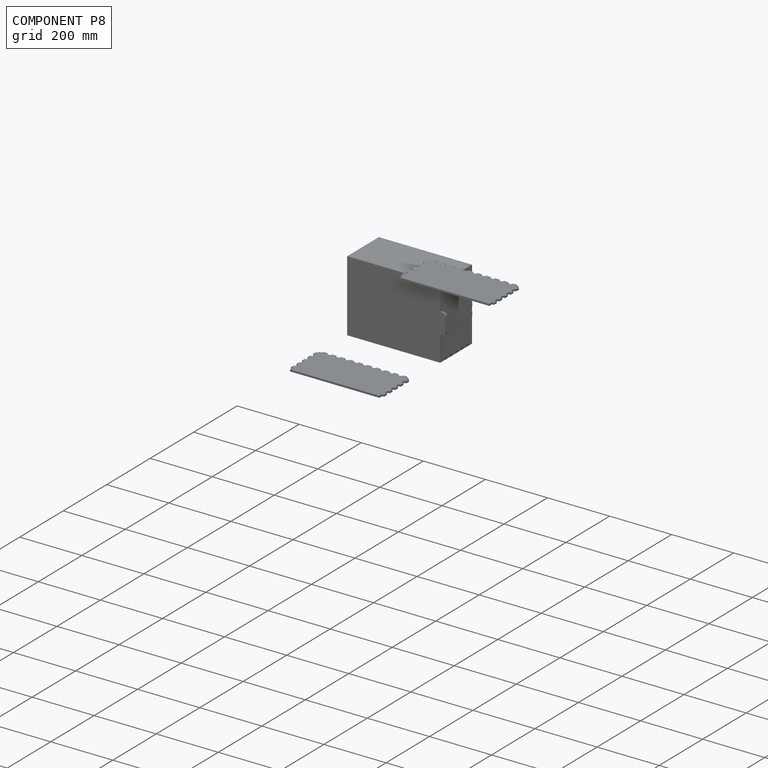
[diagram: component P8 — assembled]
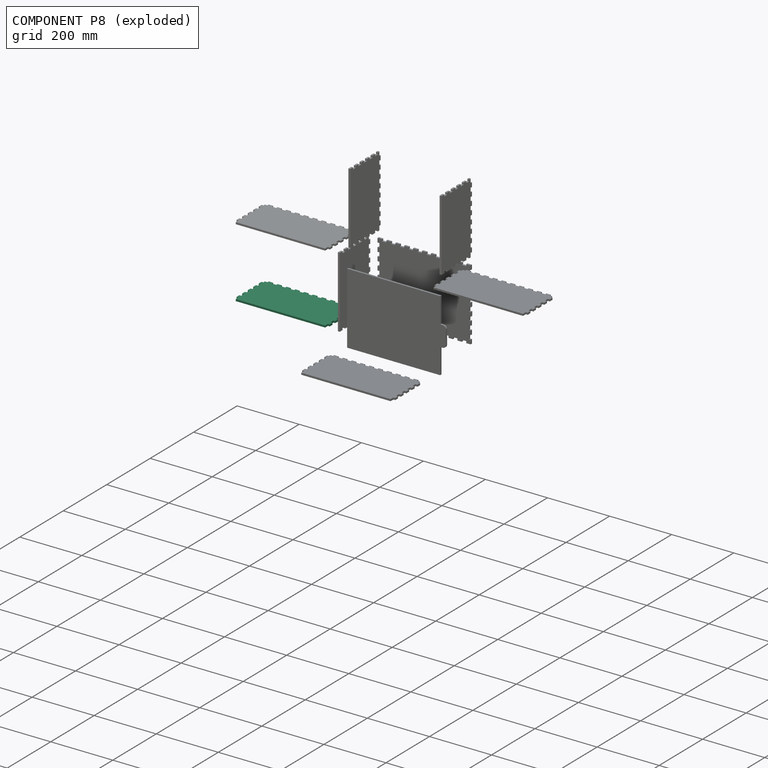
[diagram: component P8 — exploded]
COMPONENT P8 — same part as P1 (CADFS 00955357); its construction recipe is shown at P1.
Held by: FASTENED mate "Fastened 1" to P7.
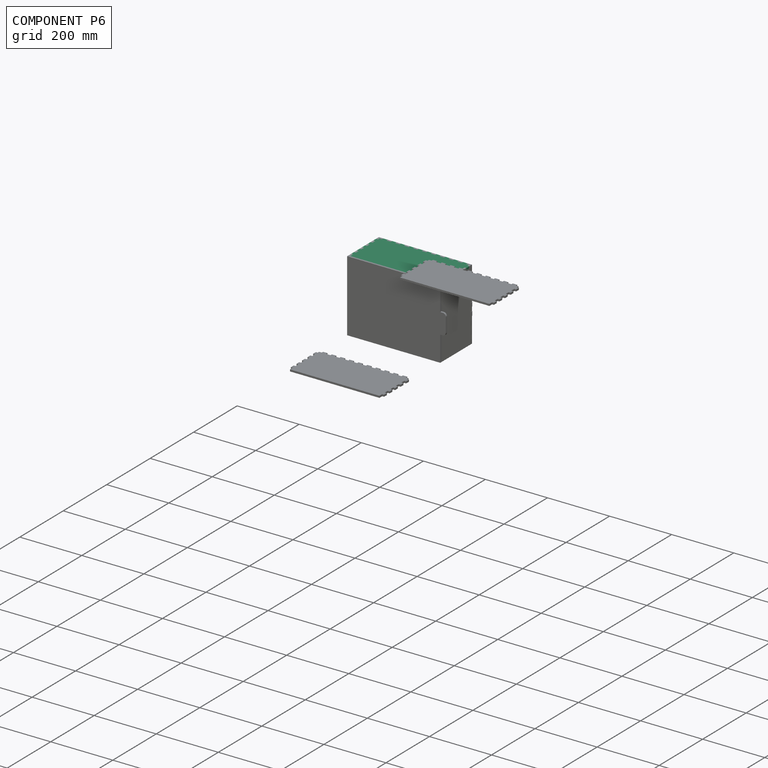
[diagram: component P6 — assembled]
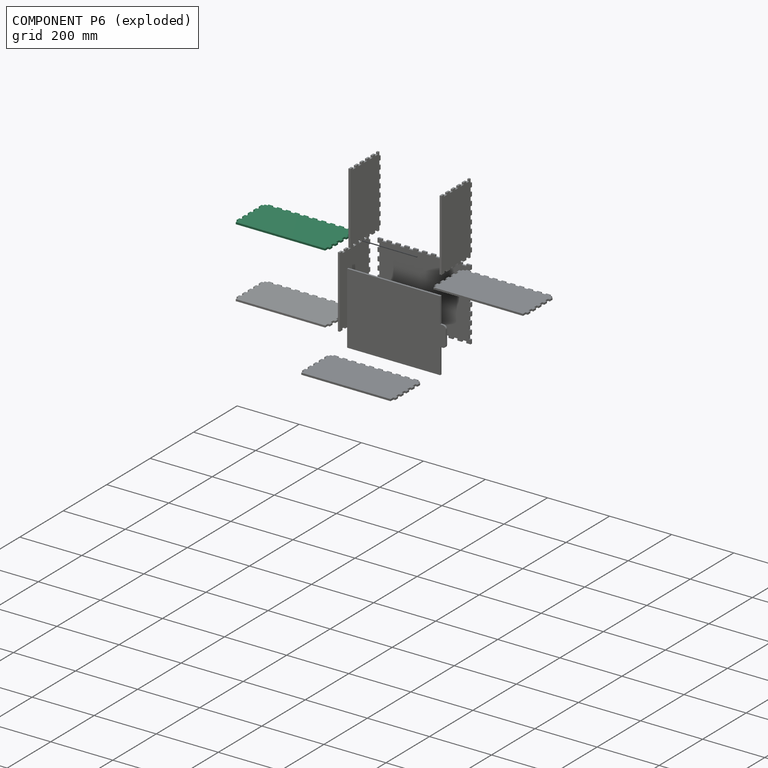
[diagram: component P6 — exploded]
COMPONENT P6 — same part as P1 (CADFS 00955357); its construction recipe is shown at P1.
Held by: FASTENED mate "Fastened 2" to P7.
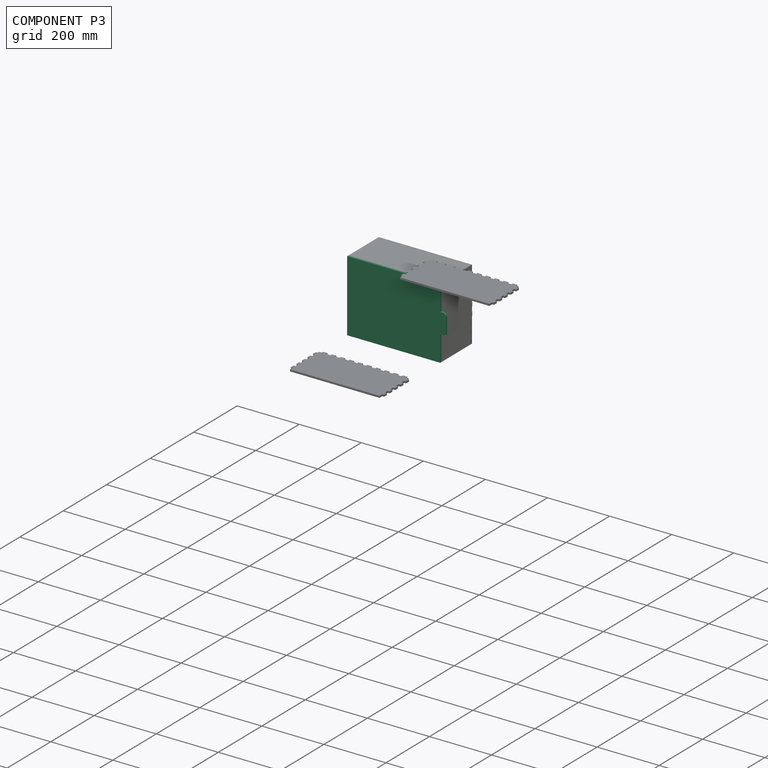
[diagram: component P3 — assembled]
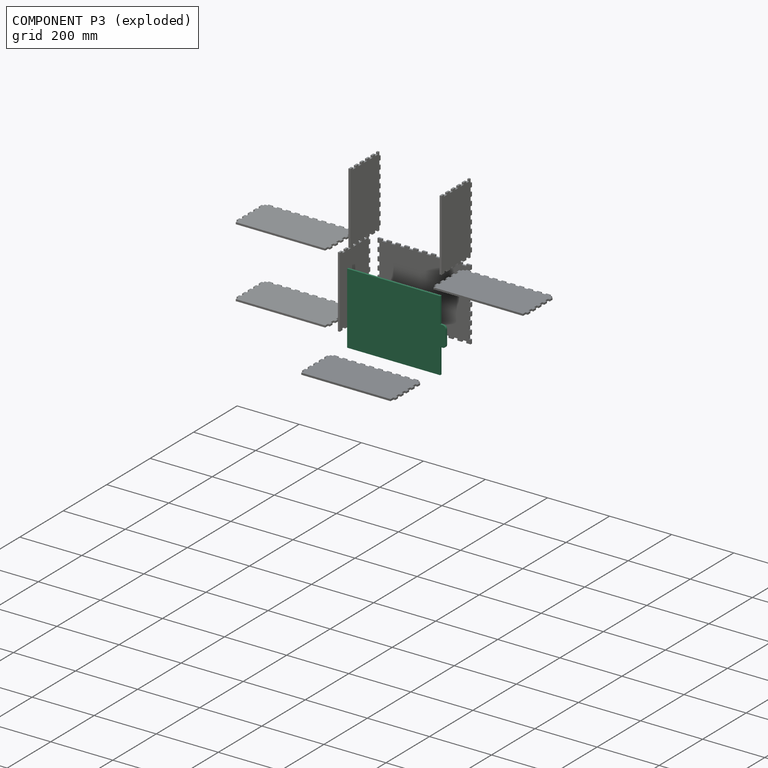
[diagram: component P3 — exploded]
COMPONENT P3 — recipe-attached (CADFS 00955354, mesh-verified: the recipe's output STEP matches this component's geometry to below the mesh-comparison resolution (tessellation chordal tolerance ~0.589 mm)).
Held by: REVOLUTE mate "Revolute 1" to P2.
Construction recipe (FeatureScript — the CAD program that rebuilds this solid; sketch coordinates are in the units given by the * unit suffixes, e.g. mm):

FeatureScript 1511;
import(path : "onshape/std/geometry.fs", version : "1511.0");
import(path : "onshape/std/common.fs", version : "1511.0");
const mm = millimeter;
const VERTEX = EntityType.VERTEX;
const EDGE = EntityType.EDGE;
const FACE = EntityType.FACE;
const BODY = EntityType.BODY;
function v(x, y){return vector(x, y);}
function OD(order){return orderDisambiguation(order);}
function OSD(set){return originalSetDisambiguation(set);}
function TD(topology){return topologyDisambiguation(topology);}
function TDD(query){return trueDependencyDisambiguation(query);}
function sQuery(a, b, c) {return sketchEntityQuery(a, b, c);}

annotation { "Feature Type Name" : "Feature", "Feature Type Description" : "" }
export const myFeature = defineFeature(function(context is Context, id is Id, definition is map)
    precondition{}
    {
        {
            var Q0;
            Q0=qCreatedBy(makeId("Front.planeOp"),FACE);
            var sketch = newSketch(context, id + "F0", { "sketchPlane" : qUnion([Q0])});
            skLineSegment(sketch, "E0.left", {"start": v(150, -115) * mm, "end": v(150, -32.87) * mm});
            skLineSegment(sketch, "E0.right", {"start": v(-150, -115) * mm, "end": v(-150, 115) * mm});
            skPoint(sketch, "E0.middle", {"position": v(0, 0) * mm});
            skLineSegment(sketch, "E1.bottom", {"start": v(158, -32.87) * mm, "end": v(150, -32.87) * mm});
            skLineSegment(sketch, "E1.top", {"start": v(158, 32.87) * mm, "end": v(150, 32.87) * mm});
            skLineSegment(sketch, "E1.left", {"start": v(168, -22.87) * mm, "end": v(168, 22.87) * mm});
            skPoint(sketch, "E2.visualSharp", {"position": v(168, 32.87) * mm});
            skArc(sketch, "E2.filletArc", {"start": v(168, 22.87) * mm, "mid": v(165.07, 29.94) * mm, "end": v(158, 32.87) * mm});
            skPoint(sketch, "E3.visualSharp", {"position": v(168, -32.87) * mm});
            skArc(sketch, "E3.filletArc", {"start": v(158, -32.87) * mm, "mid": v(165.07, -29.94) * mm, "end": v(168, -22.87) * mm});
            skLineSegment(sketch, "E4.trimOffspring", {"start": v(150, 32.87) * mm, "end": v(150, 115) * mm});
            skLineSegment(sketch, "E5.MirrorCS", {"start": v(-150, 115) * mm, "end": v(-150, -115) * mm});
            skLineSegment(sketch, "E6", {"start": v(-150, 115) * mm, "end": v(150, 115) * mm});
            skLineSegment(sketch, "E7", {"start": v(-150, -115) * mm, "end": v(150, -115) * mm});
            skSolve(sketch);
        }
        {
            var Q0;
            Q0=makeQuery(id+"F0.imprint","IMPRINT",FACE,{"disambiguationData":[TD([[makeQuery(id+"F0.imprint","IMPRINT",EDGE,{"derivedFrom":sQuery(id+"F0.wireOp",EDGE,"E0.left")}),1.0]])]});
            extrude(context, id + "F1", {"entities" : qUnion([Q0]), "depth" : 6 * mm, "offsetDistance" : 25 * mm});
        }
    });
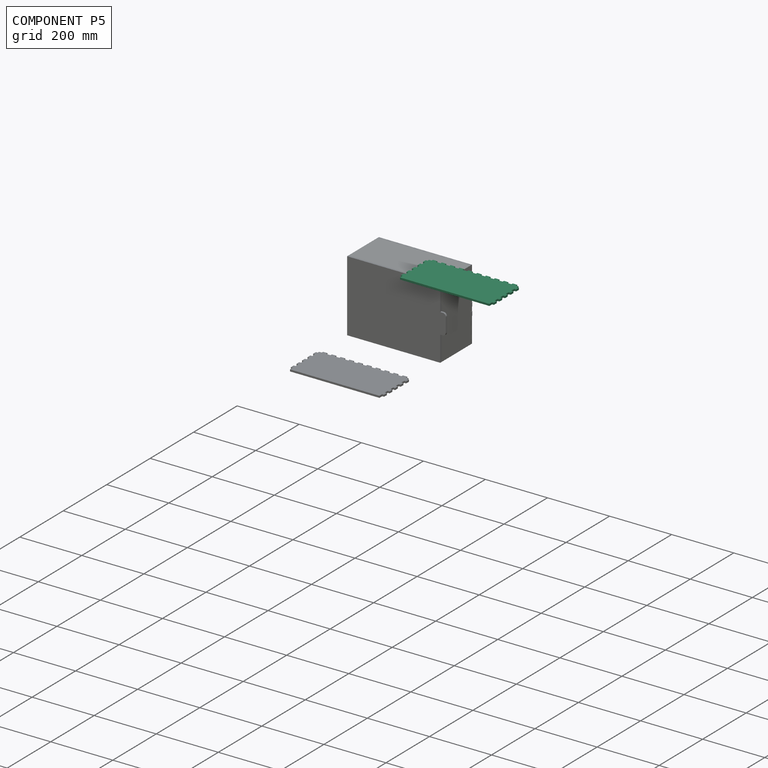
[diagram: component P5 — assembled]
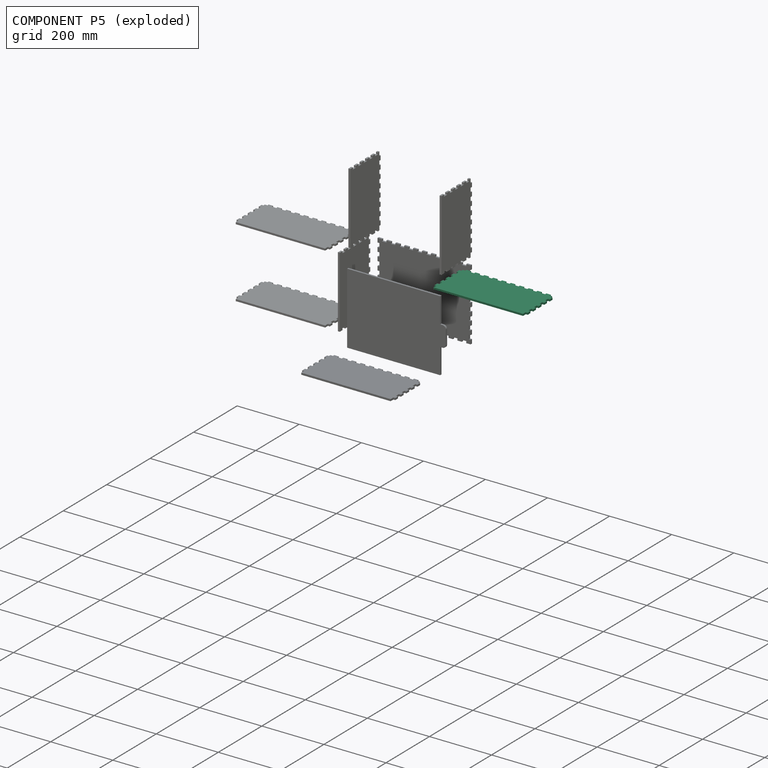
[diagram: component P5 — exploded]
COMPONENT P5 — same part as P1 (CADFS 00955357); its construction recipe is shown at P1.
Held by: no mates (free).
